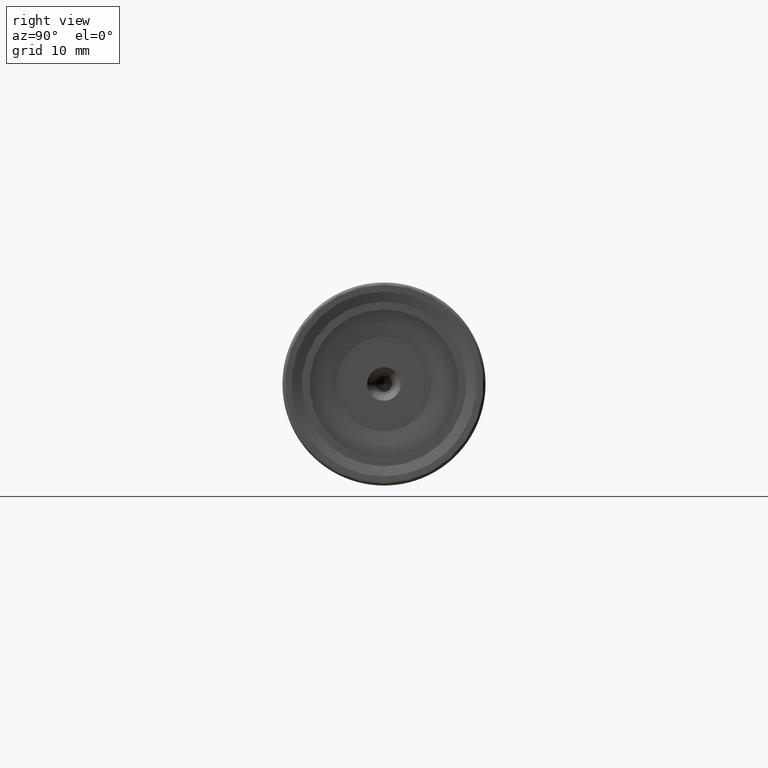
[diagram: clean part render]
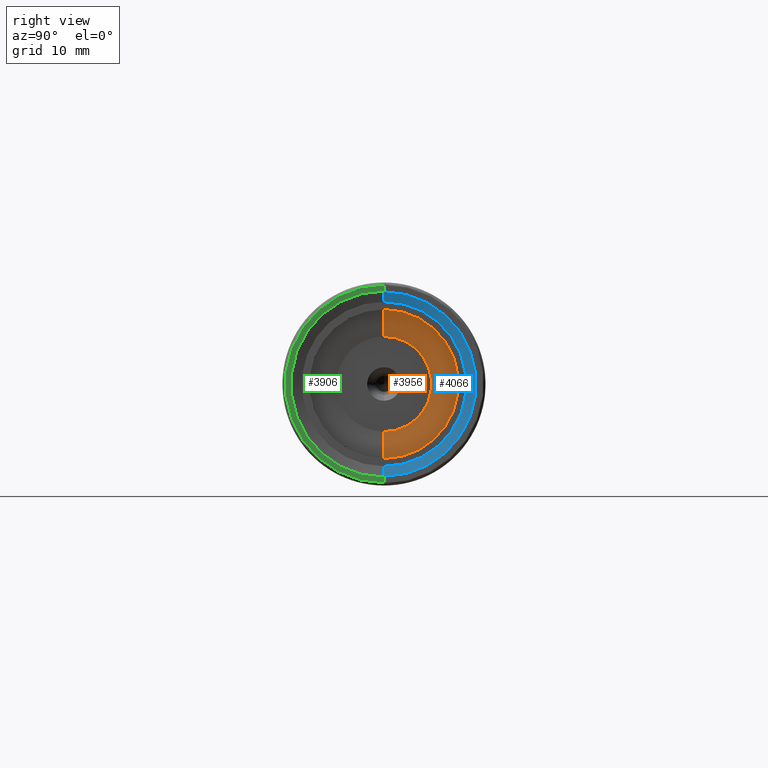
[diagram: same view with three faces highlighted in distinct colors, each labeled with its STEP entity id]
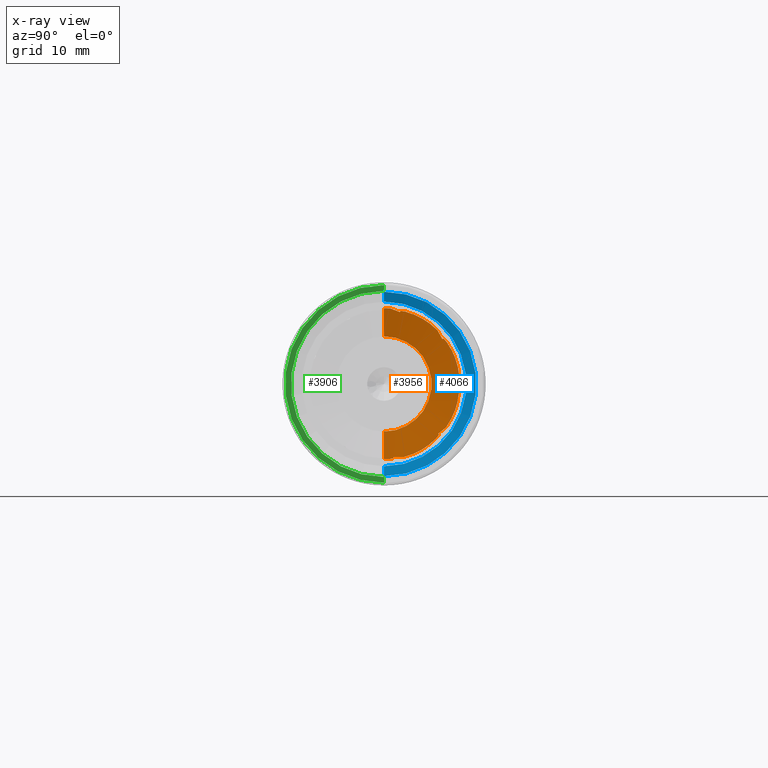
[diagram: x-ray of the same camera — body ghosted, the three highlighted faces saturated]
A machine part, right view with three faces highlighted in distinct colors.
The next image is the same camera in x-ray (body ghosted, the three faces saturated) — at least one of them is partly hidden behind the body in this view.
Their STEP definitions:

[orange] entity #3956 — the highlighted conical surface has half-angle 82.771 deg.
#49 = CIRCLE ( 'NONE', #51, 7.500000000000000000 ) ;
#51 = AXIS2_PLACEMENT_3D ( 'NONE', #5523, #5524, #5525 ) ;
#539 = VERTEX_POINT ( 'NONE', #7448 ) ;
#547 = VERTEX_POINT ( 'NONE', #2244 ) ;
#609 = VERTEX_POINT ( 'NONE', #2275 ) ;
#663 = VERTEX_POINT ( 'NONE', #2302 ) ;
#681 = VERTEX_POINT ( 'NONE', #2311 ) ;
#683 = VERTEX_POINT ( 'NONE', #2312 ) ;
#813 = LINE ( 'NONE', #814, #1303 ) ;
#814 = CARTESIAN_POINT ( 'NONE',  ( -1.399999999999999900, 9.184850993605147900E-016, 7.500000000000000000 ) ) ;
#815 = DIRECTION ( 'NONE',  ( 0.1258414835689837000, 1.214911300582200800E-016, 0.9920503621354902500 ) ) ;
#1266 = VERTEX_POINT ( 'NONE', #2346 ) ;
#1272 = VERTEX_POINT ( 'NONE', #2349 ) ;
#1303 = VECTOR ( 'NONE', #815, 1000.000000000000100 ) ;
#1496 = CARTESIAN_POINT ( 'NONE',  ( -0.8365416649249314300, 0.0000000000000000000, 0.0000000000000000000 ) ) ;
#1497 = DIRECTION ( 'NONE',  ( 1.000000000000000000, -0.0000000000000000000, -0.0000000000000000000 ) ) ;
#1498 = DIRECTION ( 'NONE',  ( 0.0000000000000000000, 0.0000000000000000000, 1.000000000000000000 ) ) ;
#1501 = CARTESIAN_POINT ( 'NONE',  ( -0.8365416649249314300, 0.0000000000000000000, 0.0000000000000000000 ) ) ;
#1502 = DIRECTION ( 'NONE',  ( 1.000000000000000000, -0.0000000000000000000, -0.0000000000000000000 ) ) ;
#1503 = DIRECTION ( 'NONE',  ( 0.0000000000000000000, 0.0000000000000000000, 1.000000000000000000 ) ) ;
#1663 = CARTESIAN_POINT ( 'NONE',  ( -0.8365416649249314300, 0.0000000000000000000, 0.0000000000000000000 ) ) ;
#1664 = DIRECTION ( 'NONE',  ( 1.000000000000000000, -0.0000000000000000000, -0.0000000000000000000 ) ) ;
#1665 = DIRECTION ( 'NONE',  ( 0.0000000000000000000, 0.0000000000000000000, 1.000000000000000000 ) ) ;
#1668 = CARTESIAN_POINT ( 'NONE',  ( -0.8365416649249314300, 0.0000000000000000000, 0.0000000000000000000 ) ) ;
#1669 = DIRECTION ( 'NONE',  ( 1.000000000000000000, -0.0000000000000000000, -0.0000000000000000000 ) ) ;
#1670 = DIRECTION ( 'NONE',  ( 0.0000000000000000000, -3.286260152890462700E-014, 1.000000000000000000 ) ) ;
#1959 = VERTEX_POINT ( 'NONE', #2355 ) ;
#1962 = VERTEX_POINT ( 'NONE', #2358 ) ;
#1972 = CARTESIAN_POINT ( 'NONE',  ( -0.8477636360137962300, 9.749529692311330800, 6.747184808860131600 ) ) ;
#1973 = CARTESIAN_POINT ( 'NONE',  ( -0.8424511453978544800, 9.933388059322091100, 6.544233946217190100 ) ) ;
#1974 = CARTESIAN_POINT ( 'NONE',  ( -0.8453948146660833500, 10.33889500286817900, 5.849473522491171800 ) ) ;
#1975 = CARTESIAN_POINT ( 'NONE',  ( -0.8430045810115636100, 10.54151212951196100, 5.501994232619948900 ) ) ;
#1978 = CARTESIAN_POINT ( 'NONE',  ( -0.8519066750031524200, 9.565642142267860100, 6.950131811491003100 ) ) ;
#1979 = CARTESIAN_POINT ( 'NONE',  ( -0.8548505829995853800, 9.381724668559142400, 7.153074856147040500 ) ) ;
#1980 = CARTESIAN_POINT ( 'NONE',  ( -0.8716663574693768200, 9.267050254454451500, 7.084826724036699600 ) ) ;
#1981 = CARTESIAN_POINT ( 'NONE',  ( -0.8800728087807242500, 9.209712813513974100, 7.050702697215454500 ) ) ;
#1986 = CARTESIAN_POINT ( 'NONE',  ( -0.8632589327120333600, 9.324387536848632900, 7.118950777462411700 ) ) ;
#1987 = CARTESIAN_POINT ( 'NONE',  ( -0.8548505829995853800, 9.381724668559142400, 7.153074856147040500 ) ) ;
#1996 = CARTESIAN_POINT ( 'NONE',  ( -0.8452092456530756500, 3.781486645916434700, 11.26250638867785100 ) ) ;
#2000 = CARTESIAN_POINT ( 'NONE',  ( -0.8424511453978544800, 3.402864228669618900, 11.39823281571072400 ) ) ;
#2003 = CARTESIAN_POINT ( 'NONE',  ( -0.8424511453978544800, 3.402864228669618900, 11.39823281571072400 ) ) ;
#2004 = CARTESIAN_POINT ( 'NONE',  ( -0.8477636491358411200, 3.131565578302145000, 11.43552040811431600 ) ) ;
#2005 = CARTESIAN_POINT ( 'NONE',  ( -0.8453948211364933400, 4.160082936696772600, 11.12667066077500300 ) ) ;
#2006 = CARTESIAN_POINT ( 'NONE',  ( -0.8430045810115632800, 4.538653067589022400, 10.99072549218184300 ) ) ;
#2007 = CARTESIAN_POINT ( 'NONE',  ( -0.8716663574693778200, 2.544933516542258600, 11.38403722431496900 ) ) ;
#2008 = CARTESIAN_POINT ( 'NONE',  ( -0.8800728087807254700, 2.522944990160449500, 11.32104090658403800 ) ) ;
#2009 = CARTESIAN_POINT ( 'NONE',  ( -0.8519066823356742400, 2.860247718000152900, 11.47278619364639100 ) ) ;
#2010 = CARTESIAN_POINT ( 'NONE',  ( -0.8548505829995851600, 2.588910160530303100, 11.51002961920590400 ) ) ;
#2013 = CARTESIAN_POINT ( 'NONE',  ( -0.8632589327120319100, 2.566921904369535000, 11.44703346051450900 ) ) ;
#2014 = CARTESIAN_POINT ( 'NONE',  ( -0.8548505829995851600, 2.588910160530303100, 11.51002961920590400 ) ) ;
#2064 = CARTESIAN_POINT ( 'NONE',  ( -0.8424511453978544800, 0.7007788160716380600, -11.87468337813052300 ) ) ;
#2068 = CARTESIAN_POINT ( 'NONE',  ( -0.8548505829995853800, 1.503882206315594300, -11.70134932235686700 ) ) ;
#2093 = CARTESIAN_POINT ( 'NONE',  ( -0.8430045810115636100, 10.54151212951196100, 5.501994232619948900 ) ) ;
#2132 = CONICAL_SURFACE ( 'NONE', #2133, 7.500000000000000000, 1.444620314489962100 ) ;
#2133 = AXIS2_PLACEMENT_3D ( 'NONE', #4594, #4589, #4591 ) ;
#2244 = CARTESIAN_POINT ( 'NONE',  ( -0.8365416649249314300, 8.421765901325349200, 8.466613740977718900 ) ) ;
#2275 = CARTESIAN_POINT ( 'NONE',  ( -0.8365416649249312100, 4.555466015968474600, 11.03890476963160900 ) ) ;
#2302 = CARTESIAN_POINT ( 'NONE',  ( -0.8365416649249314300, 11.89368137866168100, 1.072395635255705100 ) ) ;
#2311 = CARTESIAN_POINT ( 'NONE',  ( -0.8365416649249316500, 7.282238952473900200, -9.464601680721221700 ) ) ;
#2312 = CARTESIAN_POINT ( 'NONE',  ( -0.8365416649249314300, 1.009212561261917600, 11.89920918136286300 ) ) ;
#2346 = CARTESIAN_POINT ( 'NONE',  ( -0.8800728087807315700, 11.58715365686758300, -0.5187376640122622900 ) ) ;
#2349 = CARTESIAN_POINT ( 'NONE',  ( -0.8430045810115635000, 11.61188051017884400, -2.561181276239489400 ) ) ;
#2355 = CARTESIAN_POINT ( 'NONE',  ( -0.8548505829995851600, 2.588910160530303100, 11.51002961920590400 ) ) ;
#2358 = CARTESIAN_POINT ( 'NONE',  ( -0.8800728087807254700, 2.522944990160449500, 11.32104090658403800 ) ) ;
#2370 = CARTESIAN_POINT ( 'NONE',  ( -0.8365416649249314300, 3.121419633006880600, -11.52677008577503800 ) ) ;
#2380 = CARTESIAN_POINT ( 'NONE',  ( -0.8365416649249314300, 1.462464619686716000E-015, 11.94192987484180100 ) ) ;
#2382 = CARTESIAN_POINT ( 'NONE',  ( -0.8365416649249314300, 9.800411155349790300, -6.823608306587833500 ) ) ;
#2386 = CARTESIAN_POINT ( 'NONE',  ( -0.8365416649249308700, 10.58536063777884800, 5.528094545483218900 ) ) ;
#2427 = CARTESIAN_POINT ( 'NONE',  ( -0.8424511453978544800, 11.81596921970655100, -1.371884717770209600 ) ) ;
#2442 = CARTESIAN_POINT ( 'NONE',  ( -0.8424511453978544800, 9.933388059322091100, 6.544233946217190100 ) ) ;
#2446 = CARTESIAN_POINT ( 'NONE',  ( -0.8800728087807254700, 1.501231243563165000, -11.50119660666987200 ) ) ;
#2449 = CARTESIAN_POINT ( 'NONE',  ( -0.8430045810115632800, 7.248920948456149200, -9.425951601587218700 ) ) ;
#2455 = CARTESIAN_POINT ( 'NONE',  ( -0.8446540480794894100, -7.550806746178074500E-018, -11.87797725430670000 ) ) ;
#2471 = CARTESIAN_POINT ( 'NONE',  ( -1.399999999999999900, 1.190474859524439800E-015, 7.500000000000000000 ) ) ;
#2473 = CARTESIAN_POINT ( 'NONE',  ( -0.8800728087807238000, 8.542836527304331200, -7.845454907121693500 ) ) ;
#2474 = CARTESIAN_POINT ( 'NONE',  ( -0.8548505829995853800, 9.381724668559142400, 7.153074856147040500 ) ) ;
#2482 = CARTESIAN_POINT ( 'NONE',  ( -0.8548505829995855000, 8.673522968278447800, -7.997076776737884500 ) ) ;
#2495 = CARTESIAN_POINT ( 'NONE',  ( -0.8548505829995853800, 11.78472593791361200, -0.5508831296748588600 ) ) ;
#2499 = VERTEX_POINT ( 'NONE', #2370 ) ;
#2512 = VERTEX_POINT ( 'NONE', #2380 ) ;
#2514 = VERTEX_POINT ( 'NONE', #2382 ) ;
#2518 = VERTEX_POINT ( 'NONE', #2386 ) ;
#2677 = EDGE_LOOP ( 'NONE', ( #2718, #2719, #2720, #2721, #2722, #2723, #2724, #2725, #2726, #2727, #2728, #2729, #2730, #2731, #2732, #2733, #2734, #2735, #2736, #2737, #2738, #2739, #2740, #2741, #2742, #2743, #2744, #2745, #2746, #2747, #2748, #2749 ) ) ;
#2718 = ORIENTED_EDGE ( 'NONE', *, *, #3816, .F. ) ;
#2719 = ORIENTED_EDGE ( 'NONE', *, *, #4445, .F. ) ;
#2720 = ORIENTED_EDGE ( 'NONE', *, *, #4378, .T. ) ;
#2721 = ORIENTED_EDGE ( 'NONE', *, *, #4450, .F. ) ;
#2722 = ORIENTED_EDGE ( 'NONE', *, *, #4449, .T. ) ;
#2723 = ORIENTED_EDGE ( 'NONE', *, *, #4453, .F. ) ;
#2724 = ORIENTED_EDGE ( 'NONE', *, *, #4452, .F. ) ;
#2725 = ORIENTED_EDGE ( 'NONE', *, *, #4182, .T. ) ;
#2726 = ORIENTED_EDGE ( 'NONE', *, *, #4386, .F. ) ;
#2727 = ORIENTED_EDGE ( 'NONE', *, *, #4455, .F. ) ;
#2728 = ORIENTED_EDGE ( 'NONE', *, *, #4456, .T. ) ;
#2729 = ORIENTED_EDGE ( 'NONE', *, *, #4457, .F. ) ;
#2730 = ORIENTED_EDGE ( 'NONE', *, *, #4380, .F. ) ;
#2731 = ORIENTED_EDGE ( 'NONE', *, *, #4088, .T. ) ;
#2732 = ORIENTED_EDGE ( 'NONE', *, *, #4394, .F. ) ;
#2733 = ORIENTED_EDGE ( 'NONE', *, *, #4460, .F. ) ;
#2734 = ORIENTED_EDGE ( 'NONE', *, *, #4461, .T. ) ;
#2735 = ORIENTED_EDGE ( 'NONE', *, *, #4462, .F. ) ;
#2736 = ORIENTED_EDGE ( 'NONE', *, *, #4374, .F. ) ;
#2737 = ORIENTED_EDGE ( 'NONE', *, *, #4153, .T. ) ;
#2738 = ORIENTED_EDGE ( 'NONE', *, *, #4402, .F. ) ;
#2739 = ORIENTED_EDGE ( 'NONE', *, *, #4464, .F. ) ;
#2740 = ORIENTED_EDGE ( 'NONE', *, *, #4465, .T. ) ;
#2741 = ORIENTED_EDGE ( 'NONE', *, *, #4467, .F. ) ;
#2742 = ORIENTED_EDGE ( 'NONE', *, *, #4371, .F. ) ;
#2743 = ORIENTED_EDGE ( 'NONE', *, *, #4152, .T. ) ;
#2744 = ORIENTED_EDGE ( 'NONE', *, *, #4411, .F. ) ;
#2745 = ORIENTED_EDGE ( 'NONE', *, *, #4472, .F. ) ;
#2746 = ORIENTED_EDGE ( 'NONE', *, *, #4473, .T. ) ;
#2747 = ORIENTED_EDGE ( 'NONE', *, *, #4474, .F. ) ;
#2748 = ORIENTED_EDGE ( 'NONE', *, *, #4365, .F. ) ;
#2749 = ORIENTED_EDGE ( 'NONE', *, *, #4183, .T. ) ;
#2839 = VERTEX_POINT ( 'NONE', #2427 ) ;
#2858 = VERTEX_POINT ( 'NONE', #2442 ) ;
#2862 = VERTEX_POINT ( 'NONE', #2446 ) ;
#2865 = VERTEX_POINT ( 'NONE', #2449 ) ;
#2871 = VERTEX_POINT ( 'NONE', #2455 ) ;
#2900 = VERTEX_POINT ( 'NONE', #2471 ) ;
#3536 = VERTEX_POINT ( 'NONE', #2473 ) ;
#3537 = VERTEX_POINT ( 'NONE', #2474 ) ;
#3546 = VERTEX_POINT ( 'NONE', #2482 ) ;
#3559 = VERTEX_POINT ( 'NONE', #2495 ) ;
#3574 = VERTEX_POINT ( 'NONE', #6665 ) ;
#3578 = VERTEX_POINT ( 'NONE', #6669 ) ;
#3610 = B_SPLINE_CURVE_WITH_KNOTS ( 'NONE', 3,
 ( #5198, #5197, #5219, #5220 ),
 .UNSPECIFIED., .F., .F.,
 ( 4, 4 ),
 ( 0.0004852355708288945000, 0.002106209874943232800 ),
 .UNSPECIFIED. ) ;
#3633 = B_SPLINE_CURVE_WITH_KNOTS ( 'NONE', 3,
 ( #5259, #5258, #5264, #5265 ),
 .UNSPECIFIED., .F., .F.,
 ( 4, 4 ),
 ( 0.0004796533325370604100, 0.002100628126763909000 ),
 .UNSPECIFIED. ) ;
#3683 = VERTEX_POINT ( 'NONE', #6712 ) ;
#3685 = VERTEX_POINT ( 'NONE', #6714 ) ;
#3692 = VERTEX_POINT ( 'NONE', #6721 ) ;
#3816 = EDGE_CURVE ( 'NONE', #2900, #2512, #813, .T. ) ;
#3956 = ADVANCED_FACE ( 'NONE', ( #4595 ), #2132, .F. ) ;
#4088 = EDGE_CURVE ( 'NONE', #2514, #539, #6374, .T. ) ;
#4152 = EDGE_CURVE ( 'NONE', #547, #609, #6401, .T. ) ;
#4153 = EDGE_CURVE ( 'NONE', #663, #2518, #6411, .T. ) ;
#4182 = EDGE_CURVE ( 'NONE', #2499, #681, #6444, .T. ) ;
#4183 = EDGE_CURVE ( 'NONE', #683, #2512, #6446, .T. ) ;
#4365 = EDGE_CURVE ( 'NONE', #683, #1962, #3610, .T. ) ;
#4371 = EDGE_CURVE ( 'NONE', #547, #3685, #3633, .T. ) ;
#4374 = EDGE_CURVE ( 'NONE', #663, #1266, #6219, .T. ) ;
#4378 = EDGE_CURVE ( 'NONE', #3578, #2871, #5295, .T. ) ;
#4380 = EDGE_CURVE ( 'NONE', #2514, #3536, #6192, .T. ) ;
#4386 = EDGE_CURVE ( 'NONE', #2865, #681, #6220, .T. ) ;
#4394 = EDGE_CURVE ( 'NONE', #1272, #539, #6189, .T. ) ;
#4402 = EDGE_CURVE ( 'NONE', #7720, #2518, #6224, .T. ) ;
#4411 = EDGE_CURVE ( 'NONE', #3683, #609, #6196, .T. ) ;
#4445 = EDGE_CURVE ( 'NONE', #3578, #2900, #49, .T. ) ;
#4449 = EDGE_CURVE ( 'NONE', #6629, #6634, #6217, .T. ) ;
#4450 = EDGE_CURVE ( 'NONE', #6629, #2871, #6221, .T. ) ;
#4452 = EDGE_CURVE ( 'NONE', #2499, #2862, #6184, .T. ) ;
#4453 = EDGE_CURVE ( 'NONE', #2862, #6634, #6207, .T. ) ;
#4455 = EDGE_CURVE ( 'NONE', #3692, #2865, #6187, .T. ) ;
#4456 = EDGE_CURVE ( 'NONE', #3692, #3546, #6210, .T. ) ;
#4457 = EDGE_CURVE ( 'NONE', #3536, #3546, #6216, .T. ) ;
#4460 = EDGE_CURVE ( 'NONE', #2839, #1272, #6199, .T. ) ;
#4461 = EDGE_CURVE ( 'NONE', #2839, #3559, #6197, .T. ) ;
#4462 = EDGE_CURVE ( 'NONE', #1266, #3559, #6198, .T. ) ;
#4464 = EDGE_CURVE ( 'NONE', #2858, #7720, #6204, .T. ) ;
#4465 = EDGE_CURVE ( 'NONE', #2858, #3537, #6188, .T. ) ;
#4467 = EDGE_CURVE ( 'NONE', #3685, #3537, #6193, .T. ) ;
#4472 = EDGE_CURVE ( 'NONE', #3574, #3683, #6200, .T. ) ;
#4473 = EDGE_CURVE ( 'NONE', #3574, #1959, #6208, .T. ) ;
#4474 = EDGE_CURVE ( 'NONE', #1962, #1959, #6195, .T. ) ;
#4589 = DIRECTION ( 'NONE',  ( 1.000000000000000000, -0.0000000000000000000, -0.0000000000000000000 ) ) ;
#4591 = DIRECTION ( 'NONE',  ( 0.0000000000000000000, 0.0000000000000000000, -1.000000000000000000 ) ) ;
#4594 = CARTESIAN_POINT ( 'NONE',  ( -1.399999999999999900, 0.0000000000000000000, 0.0000000000000000000 ) ) ;
#4595 = FACE_OUTER_BOUND ( 'NONE', #2677, .T. ) ;
#5197 = CARTESIAN_POINT ( 'NONE',  ( -0.8556041614185925200, 1.513338670799276600, 11.70563698774412300 ) ) ;
#5198 = CARTESIAN_POINT ( 'NONE',  ( -0.8365416649249314300, 1.009212561261917600, 11.89920918136286300 ) ) ;
#5219 = CARTESIAN_POINT ( 'NONE',  ( -0.8702469466257672900, 2.017925190087273000, 11.51294759014786400 ) ) ;
#5220 = CARTESIAN_POINT ( 'NONE',  ( -0.8800728087807254700, 2.522944990160449500, 11.32104090658403800 ) ) ;
#5258 = CARTESIAN_POINT ( 'NONE',  ( -0.8556040609611059700, 8.683521719098134600, 7.994285309918332400 ) ) ;
#5259 = CARTESIAN_POINT ( 'NONE',  ( -0.8365416649249314300, 8.421765901325349200, 8.466613740977718900 ) ) ;
#5264 = CARTESIAN_POINT ( 'NONE',  ( -0.8702468934673994700, 8.946199014799621100, 7.522334767427798500 ) ) ;
#5265 = CARTESIAN_POINT ( 'NONE',  ( -0.8800728087807242500, 9.209712813513974100, 7.050702697215454500 ) ) ;
#5272 = CARTESIAN_POINT ( 'NONE',  ( -0.8556042313274646600, 11.79059018378390500, 0.5423129314241169600 ) ) ;
#5273 = CARTESIAN_POINT ( 'NONE',  ( -0.8365416649249314300, 11.89368137866168100, 1.072395635255705100 ) ) ;
#5277 = CARTESIAN_POINT ( 'NONE',  ( -0.8702469836524098200, 11.68844869701775300, 0.01193199668598479400 ) ) ;
#5278 = CARTESIAN_POINT ( 'NONE',  ( -0.8800728087807315700, 11.58715365686758300, -0.5187376640122622900 ) ) ;
#5295 = LINE ( 'NONE', #5296, #6609 ) ;
#5296 = CARTESIAN_POINT ( 'NONE',  ( -1.399999999999999900, 0.0000000000000000000, -7.500000000000000000 ) ) ;
#5297 = DIRECTION ( 'NONE',  ( 0.1258414835689837000, 0.0000000000000000000, -0.9920503621354902500 ) ) ;
#5299 = CARTESIAN_POINT ( 'NONE',  ( -0.8365416649249314300, 9.800411155349790300, -6.823608306587833500 ) ) ;
#5300 = CARTESIAN_POINT ( 'NONE',  ( -0.8556040918489713500, 9.380711195184060700, -7.163406987199370400 ) ) ;
#5304 = CARTESIAN_POINT ( 'NONE',  ( -0.8702469098044829400, 8.961544059515441400, -7.504046993244180000 ) ) ;
#5305 = CARTESIAN_POINT ( 'NONE',  ( -0.8800728087807238000, 8.542836527304331200, -7.845454907121693500 ) ) ;
#5306 = CARTESIAN_POINT ( 'NONE',  ( -0.8408502897859919700, 7.260026949820884000, -9.438834963640450900 ) ) ;
#5329 = CARTESIAN_POINT ( 'NONE',  ( -0.8430045810115632800, 7.248920948456149200, -9.425951601587218700 ) ) ;
#5334 = CARTESIAN_POINT ( 'NONE',  ( -0.8386959843635085600, 7.271132951160034000, -9.451718323341809800 ) ) ;
#5335 = CARTESIAN_POINT ( 'NONE',  ( -0.8365416649249316500, 7.282238952473900200, -9.464601680721221700 ) ) ;
#5339 = CARTESIAN_POINT ( 'NONE',  ( -0.8408502897859921900, 11.62866946630849300, -2.563911704078644300 ) ) ;
#5356 = CARTESIAN_POINT ( 'NONE',  ( -0.8430045810115635000, 11.61188051017884400, -2.561181276239489400 ) ) ;
#5360 = CARTESIAN_POINT ( 'NONE',  ( -0.8408502897859923000, 10.55612830124500200, 5.510694336526135800 ) ) ;
#5361 = CARTESIAN_POINT ( 'NONE',  ( -0.8386959843635084500, 11.64545842090679000, -2.566642130132606800 ) ) ;
#5362 = CARTESIAN_POINT ( 'NONE',  ( -0.8365416649249315400, 11.66224737399320000, -2.569372554424105700 ) ) ;
#5383 = CARTESIAN_POINT ( 'NONE',  ( -0.8430045810115636100, 10.54151212951196100, 5.501994232619948900 ) ) ;
#5388 = CARTESIAN_POINT ( 'NONE',  ( -0.8386959843635086700, 10.57074447065745400, 5.519394440815524700 ) ) ;
#5389 = CARTESIAN_POINT ( 'NONE',  ( -0.8365416649249308700, 10.58536063777884800, 5.528094545483218900 ) ) ;
#5400 = CARTESIAN_POINT ( 'NONE',  ( -0.8408502897859917400, 4.544257385730907700, 11.00678525252478400 ) ) ;
#5411 = CARTESIAN_POINT ( 'NONE',  ( -0.8430045810115632800, 4.538653067589022400, 10.99072549218184300 ) ) ;
#5416 = CARTESIAN_POINT ( 'NONE',  ( -0.8386959843635082300, 4.549861701848803000, 11.02284501166963100 ) ) ;
#5417 = CARTESIAN_POINT ( 'NONE',  ( -0.8365416649249312100, 4.555466015968474600, 11.03890476963160900 ) ) ;
#5523 = CARTESIAN_POINT ( 'NONE',  ( -1.399999999999999900, 0.0000000000000000000, 0.0000000000000000000 ) ) ;
#5524 = DIRECTION ( 'NONE',  ( 1.000000000000000000, -0.0000000000000000000, -0.0000000000000000000 ) ) ;
#5525 = DIRECTION ( 'NONE',  ( 0.0000000000000000000, 0.0000000000000000000, -1.000000000000000000 ) ) ;
#5528 = CARTESIAN_POINT ( 'NONE',  ( -0.8519066744302848900, 1.236169585172426600, -11.75915501570910700 ) ) ;
#5529 = CARTESIAN_POINT ( 'NONE',  ( -0.8477636349886164000, 0.9684685506882406700, -11.81693280406679100 ) ) ;
#5535 = CARTESIAN_POINT ( 'NONE',  ( -0.8424511453978544800, 0.7007788160716380600, -11.87468337813052300 ) ) ;
#5536 = CARTESIAN_POINT ( 'NONE',  ( -0.8424511453978544800, 0.7007788160716380600, -11.87468337813052300 ) ) ;
#5537 = CARTESIAN_POINT ( 'NONE',  ( -0.8440529512087725500, 0.4671897376950422400, -11.87581898783168400 ) ) ;
#5538 = CARTESIAN_POINT ( 'NONE',  ( -0.8548505829995853800, 1.503882206315594300, -11.70134932235686700 ) ) ;
#5541 = CARTESIAN_POINT ( 'NONE',  ( -0.8447885409099560300, 0.2335968047395653200, -11.87691700249318800 ) ) ;
#5542 = CARTESIAN_POINT ( 'NONE',  ( -0.8446540480794894100, -7.550806746178074500E-018, -11.87797725430670000 ) ) ;
#5543 = CARTESIAN_POINT ( 'NONE',  ( -0.8556053442716338200, 2.581456955242806800, -11.51729242000353700 ) ) ;
#5544 = CARTESIAN_POINT ( 'NONE',  ( -0.8365416649249314300, 3.121419633006880600, -11.52677008577503800 ) ) ;
#5547 = CARTESIAN_POINT ( 'NONE',  ( -0.8716663574693769300, 1.502114797199547200, -11.56791430052293800 ) ) ;
#5548 = CARTESIAN_POINT ( 'NONE',  ( -0.8800728087807254700, 1.501231243563165000, -11.50119660666987200 ) ) ;
#5549 = CARTESIAN_POINT ( 'NONE',  ( -0.8702475726091838400, 2.041396159584867300, -11.50880247210763400 ) ) ;
#5550 = CARTESIAN_POINT ( 'NONE',  ( -0.8800728087807254700, 1.501231243563165000, -11.50119660666987200 ) ) ;
#5553 = CARTESIAN_POINT ( 'NONE',  ( -0.8632589327120323600, 1.502998453149221500, -11.63463187037311600 ) ) ;
#5554 = CARTESIAN_POINT ( 'NONE',  ( -0.8548505829995853800, 1.503882206315594300, -11.70134932235686700 ) ) ;
#5555 = CARTESIAN_POINT ( 'NONE',  ( -0.8452092521981762200, 7.862872591743032700, -8.906117310845653300 ) ) ;
#5556 = CARTESIAN_POINT ( 'NONE',  ( -0.8424511453978544800, 8.169727062320069100, -8.646083275512630500 ) ) ;
#5559 = CARTESIAN_POINT ( 'NONE',  ( -0.8477636365867518000, 8.337667993063663000, -8.429776059441511600 ) ) ;
#5560 = CARTESIAN_POINT ( 'NONE',  ( -0.8424511453978544800, 8.169727062320069100, -8.646083275512630500 ) ) ;
#5561 = CARTESIAN_POINT ( 'NONE',  ( -0.8453948154619510500, 7.555937254552871400, -9.166073452381491300 ) ) ;
#5562 = CARTESIAN_POINT ( 'NONE',  ( -0.8430045810115632800, 7.248920948456149200, -9.425951601587218700 ) ) ;
#5563 = CARTESIAN_POINT ( 'NONE',  ( -0.8716663574693761500, 8.586398675613285300, -7.895995688425588600 ) ) ;
#5564 = CARTESIAN_POINT ( 'NONE',  ( -0.8800728087807238000, 8.542836527304331200, -7.845454907121693500 ) ) ;
#5565 = CARTESIAN_POINT ( 'NONE',  ( -0.8519066753233179900, 8.505600036894431800, -8.213440797104587100 ) ) ;
#5566 = CARTESIAN_POINT ( 'NONE',  ( -0.8548505829995855000, 8.673522968278447800, -7.997076776737884500 ) ) ;
#5569 = CARTESIAN_POINT ( 'NONE',  ( -0.8632589327120326900, 8.629960822591252500, -7.946536308972042700 ) ) ;
#5570 = CARTESIAN_POINT ( 'NONE',  ( -0.8548505829995855000, 8.673522968278447800, -7.997076776737884500 ) ) ;
#5571 = CARTESIAN_POINT ( 'NONE',  ( -0.8452092557780498400, 11.74805162553040600, -1.768325111780239900 ) ) ;
#5572 = CARTESIAN_POINT ( 'NONE',  ( -0.8424511453978544800, 11.81596921970655100, -1.371884717770209600 ) ) ;
#5586 = CARTESIAN_POINT ( 'NONE',  ( -0.8477636347265544700, 11.80557984173650300, -1.098233523271658200 ) ) ;
#5587 = CARTESIAN_POINT ( 'NONE',  ( -0.8424511453978544800, 11.81596921970655100, -1.371884717770209600 ) ) ;
#5588 = CARTESIAN_POINT ( 'NONE',  ( -0.8453948123582566400, 11.68002210259217900, -2.164757301374769800 ) ) ;
#5589 = CARTESIAN_POINT ( 'NONE',  ( -0.8430045810115635000, 11.61188051017884400, -2.561181276239489400 ) ) ;
#5590 = CARTESIAN_POINT ( 'NONE',  ( -0.8716663574693773700, 11.65301118651600700, -0.5294529394966764900 ) ) ;
#5591 = CARTESIAN_POINT ( 'NONE',  ( -0.8800728087807315700, 11.58715365686758300, -0.5187376640122622900 ) ) ;
#5592 = CARTESIAN_POINT ( 'NONE',  ( -0.8519066742838453700, 11.79516562461449400, -0.8245664614791490300 ) ) ;
#5593 = CARTESIAN_POINT ( 'NONE',  ( -0.8548505829995853800, 11.78472593791361200, -0.5508831296748588600 ) ) ;
#5594 = CARTESIAN_POINT ( 'NONE',  ( -0.8452092531161477000, 10.13618694123727000, 6.196886732573184500 ) ) ;
#5595 = CARTESIAN_POINT ( 'NONE',  ( -0.8424511453978544800, 9.933388059322091100, 6.544233946217190100 ) ) ;
#5596 = CARTESIAN_POINT ( 'NONE',  ( -0.8632589327120323600, 11.71886861181194600, -0.5401680926892922200 ) ) ;
#5597 = CARTESIAN_POINT ( 'NONE',  ( -0.8548505829995853800, 11.78472593791361200, -0.5508831296748588600 ) ) ;
#5803 = CARTESIAN_POINT ( 'NONE',  ( -0.8365416649249314300, 0.0000000000000000000, 0.0000000000000000000 ) ) ;
#5804 = DIRECTION ( 'NONE',  ( 1.000000000000000000, -0.0000000000000000000, -0.0000000000000000000 ) ) ;
#5805 = DIRECTION ( 'NONE',  ( 0.0000000000000000000, 4.440892098500626200E-015, 1.000000000000000000 ) ) ;
#6184 = B_SPLINE_CURVE_WITH_KNOTS ( 'NONE', 3,
 ( #5544, #5543, #5549, #5550 ),
 .UNSPECIFIED., .F., .F.,
 ( 4, 4 ),
 ( 0.0009226718795290867300, 0.002543594688942969700 ),
 .UNSPECIFIED. ) ;
#6187 = B_SPLINE_CURVE_WITH_KNOTS ( 'NONE', 3,
 ( #5556, #5555, #5561, #5562 ),
 .UNSPECIFIED., .F., .F.,
 ( 4, 4 ),
 ( 0.001189299402742266600, 0.002395970867953166700 ),
 .UNSPECIFIED. ) ;
#6188 = B_SPLINE_CURVE_WITH_KNOTS ( 'NONE', 3,
 ( #1973, #1972, #1978, #1979 ),
 .UNSPECIFIED., .F., .F.,
 ( 4, 4 ),
 ( 0.0006087048359642556700, 0.001430394000867215100 ),
 .UNSPECIFIED. ) ;
#6189 = B_SPLINE_CURVE_WITH_KNOTS ( 'NONE', 3,
 ( #5356, #5339, #5361, #5362 ),
 .UNSPECIFIED., .F., .F.,
 ( 4, 4 ),
 ( 0.0001485133531875342500, 0.0001999495981235847800 ),
 .UNSPECIFIED. ) ;
#6192 = B_SPLINE_CURVE_WITH_KNOTS ( 'NONE', 3,
 ( #5299, #5300, #5304, #5305 ),
 .UNSPECIFIED., .F., .F.,
 ( 4, 4 ),
 ( 0.0004175629117575875700, 0.002038537620406025200 ),
 .UNSPECIFIED. ) ;
#6193 = B_SPLINE_CURVE_WITH_KNOTS ( 'NONE', 3,
 ( #1981, #1980, #1986, #1987 ),
 .UNSPECIFIED., .F., .F.,
 ( 4, 4 ),
 ( 2.996234319709405400E-005, 0.0002317154047410170800 ),
 .UNSPECIFIED. ) ;
#6195 = B_SPLINE_CURVE_WITH_KNOTS ( 'NONE', 3,
 ( #2008, #2007, #2013, #2014 ),
 .UNSPECIFIED., .F., .F.,
 ( 4, 4 ),
 ( 0.0002327979880765847700, 0.0004345510496800370800 ),
 .UNSPECIFIED. ) ;
#6196 = B_SPLINE_CURVE_WITH_KNOTS ( 'NONE', 3,
 ( #5411, #5400, #5416, #5417 ),
 .UNSPECIFIED., .F., .F.,
 ( 4, 4 ),
 ( 3.314242506484660400E-005, 8.457867000059275500E-005 ),
 .UNSPECIFIED. ) ;
#6197 = B_SPLINE_CURVE_WITH_KNOTS ( 'NONE', 3,
 ( #5587, #5586, #5592, #5593 ),
 .UNSPECIFIED., .F., .F.,
 ( 4, 4 ),
 ( 0.0007262511249046399300, 0.001547940324644944600 ),
 .UNSPECIFIED. ) ;
#6198 = B_SPLINE_CURVE_WITH_KNOTS ( 'NONE', 3,
 ( #5591, #5590, #5596, #5597 ),
 .UNSPECIFIED., .F., .F.,
 ( 4, 4 ),
 ( 0.0001772250954464262700, 0.0003789781570375053700 ),
 .UNSPECIFIED. ) ;
#6199 = B_SPLINE_CURVE_WITH_KNOTS ( 'NONE', 3,
 ( #5572, #5571, #5588, #5589 ),
 .UNSPECIFIED., .F., .F.,
 ( 4, 4 ),
 ( 0.001436342080285205700, 0.002643014488115750500 ),
 .UNSPECIFIED. ) ;
#6200 = B_SPLINE_CURVE_WITH_KNOTS ( 'NONE', 3,
 ( #2000, #1996, #2005, #2006 ),
 .UNSPECIFIED., .F., .F.,
 ( 4, 4 ),
 ( 0.0009101921710983161700, 0.002116861784776408600 ),
 .UNSPECIFIED. ) ;
#6204 = B_SPLINE_CURVE_WITH_KNOTS ( 'NONE', 3,
 ( #5595, #5594, #1974, #1975 ),
 .UNSPECIFIED., .F., .F.,
 ( 4, 4 ),
 ( 0.001253226096724449500, 0.002459897808371931000 ),
 .UNSPECIFIED. ) ;
#6207 = B_SPLINE_CURVE_WITH_KNOTS ( 'NONE', 3,
 ( #5548, #5547, #5553, #5554 ),
 .UNSPECIFIED., .F., .F.,
 ( 4, 4 ),
 ( 0.0001318219122570009600, 0.0003335749738357204000 ),
 .UNSPECIFIED. ) ;
#6208 = B_SPLINE_CURVE_WITH_KNOTS ( 'NONE', 3,
 ( #2003, #2004, #2009, #2010 ),
 .UNSPECIFIED., .F., .F.,
 ( 4, 4 ),
 ( 0.0002230869014553825100, 0.001044775562862769800 ),
 .UNSPECIFIED. ) ;
#6210 = B_SPLINE_CURVE_WITH_KNOTS ( 'NONE', 3,
 ( #5560, #5559, #5565, #5566 ),
 .UNSPECIFIED., .F., .F.,
 ( 4, 4 ),
 ( 0.0005569959363830677800, 0.001378685084943475400 ),
 .UNSPECIFIED. ) ;
#6216 = B_SPLINE_CURVE_WITH_KNOTS ( 'NONE', 3,
 ( #5564, #5563, #5569, #5570 ),
 .UNSPECIFIED., .F., .F.,
 ( 4, 4 ),
 ( 7.640485757282013500E-006, 0.0002093935472923012100 ),
 .UNSPECIFIED. ) ;
#6217 = B_SPLINE_CURVE_WITH_KNOTS ( 'NONE', 3,
 ( #5536, #5529, #5528, #5538 ),
 .UNSPECIFIED., .F., .F.,
 ( 4, 4 ),
 ( 0.0007021635772144562500, 0.001523852770073246900 ),
 .UNSPECIFIED. ) ;
#6219 = B_SPLINE_CURVE_WITH_KNOTS ( 'NONE', 3,
 ( #5273, #5272, #5277, #5278 ),
 .UNSPECIFIED., .F., .F.,
 ( 4, 4 ),
 ( 0.0007341737261337157300, 0.002355147326848304200 ),
 .UNSPECIFIED. ) ;
#6220 = B_SPLINE_CURVE_WITH_KNOTS ( 'NONE', 3,
 ( #5329, #5306, #5334, #5335 ),
 .UNSPECIFIED., .F., .F.,
 ( 4, 4 ),
 ( 0.0005170924654787727400, 0.0005685287104145478300 ),
 .UNSPECIFIED. ) ;
#6221 = B_SPLINE_CURVE_WITH_KNOTS ( 'NONE', 3,
 ( #5535, #5537, #5541, #5542 ),
 .UNSPECIFIED., .F., .F.,
 ( 4, 4 ),
 ( 0.001393626715489228200, 0.002094416310000768500 ),
 .UNSPECIFIED. ) ;
#6224 = B_SPLINE_CURVE_WITH_KNOTS ( 'NONE', 3,
 ( #5383, #5360, #5388, #5389 ),
 .UNSPECIFIED., .F., .F.,
 ( 4, 4 ),
 ( 0.0006178247628231447100, 0.0006692610077584835100 ),
 .UNSPECIFIED. ) ;
#6374 = CIRCLE ( 'NONE', #6379, 11.94192987484180100 ) ;
#6379 = AXIS2_PLACEMENT_3D ( 'NONE', #5803, #5804, #5805 ) ;
#6401 = CIRCLE ( 'NONE', #6414, 11.94192987484180100 ) ;
#6411 = CIRCLE ( 'NONE', #6416, 11.94192987484180100 ) ;
#6414 = AXIS2_PLACEMENT_3D ( 'NONE', #1496, #1497, #1498 ) ;
#6416 = AXIS2_PLACEMENT_3D ( 'NONE', #1501, #1502, #1503 ) ;
#6444 = CIRCLE ( 'NONE', #6447, 11.94192987484180100 ) ;
#6446 = CIRCLE ( 'NONE', #6449, 11.94192987484180100 ) ;
#6447 = AXIS2_PLACEMENT_3D ( 'NONE', #1663, #1664, #1665 ) ;
#6449 = AXIS2_PLACEMENT_3D ( 'NONE', #1668, #1669, #1670 ) ;
#6609 = VECTOR ( 'NONE', #5297, 1000.000000000000100 ) ;
#6629 = VERTEX_POINT ( 'NONE', #2064 ) ;
#6634 = VERTEX_POINT ( 'NONE', #2068 ) ;
#6665 = CARTESIAN_POINT ( 'NONE',  ( -0.8424511453978544800, 3.402864228669618900, 11.39823281571072400 ) ) ;
#6669 = CARTESIAN_POINT ( 'NONE',  ( -1.399999999999999900, 0.0000000000000000000, -7.500000000000000000 ) ) ;
#6712 = CARTESIAN_POINT ( 'NONE',  ( -0.8430045810115632800, 4.538653067589022400, 10.99072549218184300 ) ) ;
#6714 = CARTESIAN_POINT ( 'NONE',  ( -0.8800728087807242500, 9.209712813513974100, 7.050702697215454500 ) ) ;
#6721 = CARTESIAN_POINT ( 'NONE',  ( -0.8424511453978544800, 8.169727062320069100, -8.646083275512630500 ) ) ;
#7448 = CARTESIAN_POINT ( 'NONE',  ( -0.8365416649249315400, 11.66224737399320000, -2.569372554424105700 ) ) ;
#7720 = VERTEX_POINT ( 'NONE', #2093 ) ;

[blue] entity #4066 — the highlighted conical surface has half-angle 73.85 deg.
#288 = ORIENTED_EDGE ( 'NONE', *, *, #4103, .F. ) ;
#290 = ORIENTED_EDGE ( 'NONE', *, *, #3895, .F. ) ;
#292 = ORIENTED_EDGE ( 'NONE', *, *, #4177, .T. ) ;
#294 = ORIENTED_EDGE ( 'NONE', *, *, #4219, .T. ) ;
#439 = EDGE_LOOP ( 'NONE', ( #288, #290, #292, #294 ) ) ;
#677 = VERTEX_POINT ( 'NONE', #2309 ) ;
#723 = VERTEX_POINT ( 'NONE', #2332 ) ;
#1091 = CARTESIAN_POINT ( 'NONE',  ( 6.938893903907228400E-015, 0.0000000000000000000, 0.0000000000000000000 ) ) ;
#1092 = DIRECTION ( 'NONE',  ( 1.000000000000000000, -0.0000000000000000000, -0.0000000000000000000 ) ) ;
#1093 = DIRECTION ( 'NONE',  ( 0.0000000000000000000, 0.0000000000000000000, -1.000000000000000000 ) ) ;
#1363 = AXIS2_PLACEMENT_3D ( 'NONE', #1091, #1092, #1093 ) ;
#1393 = CIRCLE ( 'NONE', #1363, 12.97228338683239100 ) ;
#1639 = LINE ( 'NONE', #1643, #6430 ) ;
#1643 = CARTESIAN_POINT ( 'NONE',  ( 0.4509237223386947100, 0.0000000000000000000, -14.52945708101182900 ) ) ;
#1644 = DIRECTION ( 'NONE',  ( 0.2781507996735203500, 0.0000000000000000000, -0.9605374186573791800 ) ) ;
#1835 = CARTESIAN_POINT ( 'NONE',  ( 0.4509237223386947100, 0.0000000000000000000, 0.0000000000000000000 ) ) ;
#1836 = DIRECTION ( 'NONE',  ( 1.000000000000000000, -0.0000000000000000000, -0.0000000000000000000 ) ) ;
#1837 = DIRECTION ( 'NONE',  ( 0.0000000000000000000, 0.0000000000000000000, -1.000000000000000000 ) ) ;
#2309 = CARTESIAN_POINT ( 'NONE',  ( 6.938893903907228400E-015, 1.683995921746333000E-015, 12.97228338683239100 ) ) ;
#2332 = CARTESIAN_POINT ( 'NONE',  ( 0.4509237223386947100, 1.787420044897426100E-015, 14.52945708101182900 ) ) ;
#2373 = CARTESIAN_POINT ( 'NONE',  ( 0.4509237223386947100, 0.0000000000000000000, -14.52945708101182900 ) ) ;
#2375 = CARTESIAN_POINT ( 'NONE',  ( 6.938893903907228400E-015, 0.0000000000000000000, -12.97228338683239100 ) ) ;
#2503 = VERTEX_POINT ( 'NONE', #2373 ) ;
#2507 = VERTEX_POINT ( 'NONE', #2375 ) ;
#3895 = EDGE_CURVE ( 'NONE', #2507, #677, #1393, .T. ) ;
#4066 = ADVANCED_FACE ( 'NONE', ( #5694 ), #6346, .F. ) ;
#4103 = EDGE_CURVE ( 'NONE', #677, #723, #5906, .T. ) ;
#4177 = EDGE_CURVE ( 'NONE', #2507, #2503, #1639, .T. ) ;
#4219 = EDGE_CURVE ( 'NONE', #2503, #723, #6482, .T. ) ;
#5694 = FACE_OUTER_BOUND ( 'NONE', #439, .T. ) ;
#5697 = DIRECTION ( 'NONE',  ( 0.0000000000000000000, 0.0000000000000000000, -1.000000000000000000 ) ) ;
#5699 = CARTESIAN_POINT ( 'NONE',  ( 0.4509237223386947100, 0.0000000000000000000, 0.0000000000000000000 ) ) ;
#5700 = DIRECTION ( 'NONE',  ( 1.000000000000000000, -0.0000000000000000000, -0.0000000000000000000 ) ) ;
#5906 = LINE ( 'NONE', #5907, #6385 ) ;
#5907 = CARTESIAN_POINT ( 'NONE',  ( 0.4509237223386947100, 1.779345310760998400E-015, 14.52945708101182900 ) ) ;
#5908 = DIRECTION ( 'NONE',  ( 0.2781507996735203500, 1.176319075220020700E-016, 0.9605374186573791800 ) ) ;
#6346 = CONICAL_SURFACE ( 'NONE', #6347, 14.52945708101182900, 1.288927928314260500 ) ;
#6347 = AXIS2_PLACEMENT_3D ( 'NONE', #5699, #5700, #5697 ) ;
#6385 = VECTOR ( 'NONE', #5908, 999.9999999999998900 ) ;
#6430 = VECTOR ( 'NONE', #1644, 999.9999999999998900 ) ;
#6482 = CIRCLE ( 'NONE', #6485, 14.52945708101182900 ) ;
#6485 = AXIS2_PLACEMENT_3D ( 'NONE', #1835, #1836, #1837 ) ;

[green] entity #3906 — the highlighted conical surface has half-angle 88.225 deg.
#553 = VERTEX_POINT ( 'NONE', #2247 ) ;
#643 = VERTEX_POINT ( 'NONE', #2292 ) ;
#1133 = DIRECTION ( 'NONE',  ( 0.0000000000000000000, 0.0000000000000000000, -1.000000000000000000 ) ) ;
#1134 = CARTESIAN_POINT ( 'NONE',  ( 0.4998094004053915100, 0.0000000000000000000, 0.0000000000000000000 ) ) ;
#1135 = FACE_OUTER_BOUND ( 'NONE', #2570, .T. ) ;
#1136 = DIRECTION ( 'NONE',  ( 1.000000000000000000, -0.0000000000000000000, -0.0000000000000000000 ) ) ;
#1318 = CONICAL_SURFACE ( 'NONE', #1355, 15.56777795543301800, 1.539819173504006100 ) ;
#1355 = AXIS2_PLACEMENT_3D ( 'NONE', #1134, #1136, #1133 ) ;
#1428 = LINE ( 'NONE', #1430, #6390 ) ;
#1430 = CARTESIAN_POINT ( 'NONE',  ( 0.4998094004053915100, 0.0000000000000000000, -15.56777795543301800 ) ) ;
#1431 = DIRECTION ( 'NONE',  ( 0.03097219933167198000, 0.0000000000000000000, -0.9995202463524984800 ) ) ;
#1538 = LINE ( 'NONE', #1539, #6422 ) ;
#1539 = CARTESIAN_POINT ( 'NONE',  ( 0.4998094004053915100, 1.906502944295776700E-015, 15.56777795543301800 ) ) ;
#1540 = DIRECTION ( 'NONE',  ( 0.03097219933167198000, 1.224059270378561100E-016, 0.9995202463524984800 ) ) ;
#1659 = CARTESIAN_POINT ( 'NONE',  ( 0.4717211606841877900, 0.0000000000000000000, 0.0000000000000000000 ) ) ;
#1660 = DIRECTION ( 'NONE',  ( 1.000000000000000000, -0.0000000000000000000, -0.0000000000000000000 ) ) ;
#1661 = DIRECTION ( 'NONE',  ( 0.0000000000000000000, 0.0000000000000000000, -1.000000000000000000 ) ) ;
#2205 = ORIENTED_EDGE ( 'NONE', *, *, #4181, .F. ) ;
#2206 = ORIENTED_EDGE ( 'NONE', *, *, #4160, .T. ) ;
#2207 = ORIENTED_EDGE ( 'NONE', *, *, #4093, .T. ) ;
#2208 = ORIENTED_EDGE ( 'NONE', *, *, #4138, .F. ) ;
#2247 = CARTESIAN_POINT ( 'NONE',  ( 0.4717211606841877900, 1.795494779033853900E-015, 14.66132749690724800 ) ) ;
#2292 = CARTESIAN_POINT ( 'NONE',  ( 0.4717211606841877900, 0.0000000000000000000, -14.66132749690724800 ) ) ;
#2381 = CARTESIAN_POINT ( 'NONE',  ( 0.4998094004053915100, 1.931576746545083400E-015, 15.56777795543301800 ) ) ;
#2410 = CARTESIAN_POINT ( 'NONE',  ( 0.4998094004053915100, 0.0000000000000000000, -15.56777795543301800 ) ) ;
#2513 = VERTEX_POINT ( 'NONE', #2381 ) ;
#2542 = VERTEX_POINT ( 'NONE', #2410 ) ;
#2570 = EDGE_LOOP ( 'NONE', ( #2205, #2206, #2207, #2208 ) ) ;
#3906 = ADVANCED_FACE ( 'NONE', ( #1135 ), #1318, .F. ) ;
#4093 = EDGE_CURVE ( 'NONE', #2513, #2542, #6378, .T. ) ;
#4138 = EDGE_CURVE ( 'NONE', #643, #2542, #1428, .T. ) ;
#4160 = EDGE_CURVE ( 'NONE', #553, #2513, #1538, .T. ) ;
#4181 = EDGE_CURVE ( 'NONE', #553, #643, #6441, .T. ) ;
#5842 = CARTESIAN_POINT ( 'NONE',  ( 0.4998094004053915100, 0.0000000000000000000, 0.0000000000000000000 ) ) ;
#5843 = DIRECTION ( 'NONE',  ( 1.000000000000000000, -0.0000000000000000000, -0.0000000000000000000 ) ) ;
#5844 = DIRECTION ( 'NONE',  ( 0.0000000000000000000, 0.0000000000000000000, -1.000000000000000000 ) ) ;
#6378 = CIRCLE ( 'NONE', #6382, 15.56777795543301800 ) ;
#6382 = AXIS2_PLACEMENT_3D ( 'NONE', #5842, #5843, #5844 ) ;
#6390 = VECTOR ( 'NONE', #1431, 1000.000000000000000 ) ;
#6422 = VECTOR ( 'NONE', #1540, 1000.000000000000000 ) ;
#6441 = CIRCLE ( 'NONE', #6445, 14.66132749690725000 ) ;
#6445 = AXIS2_PLACEMENT_3D ( 'NONE', #1659, #1660, #1661 ) ;